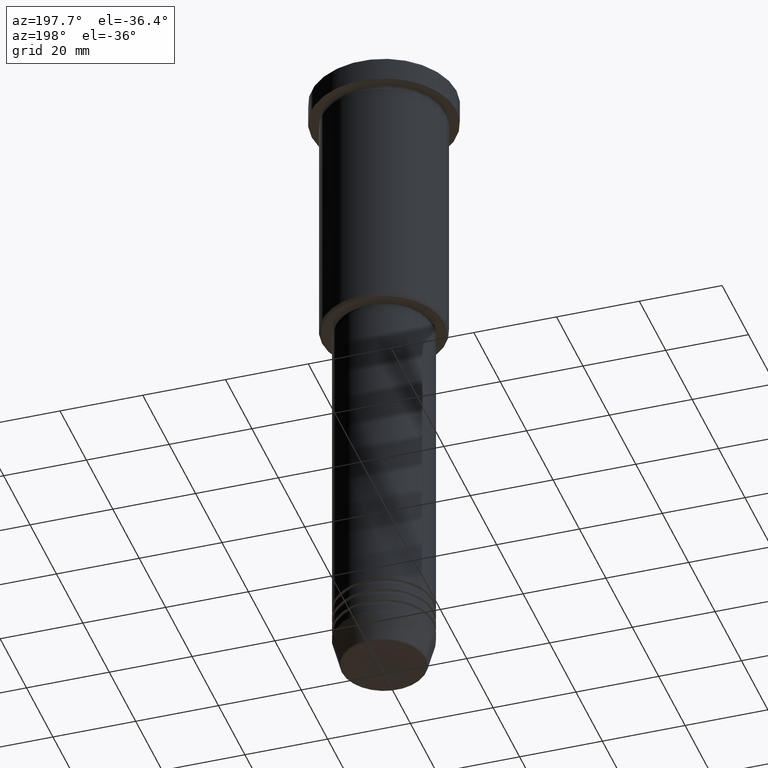
[diagram: clean part render]
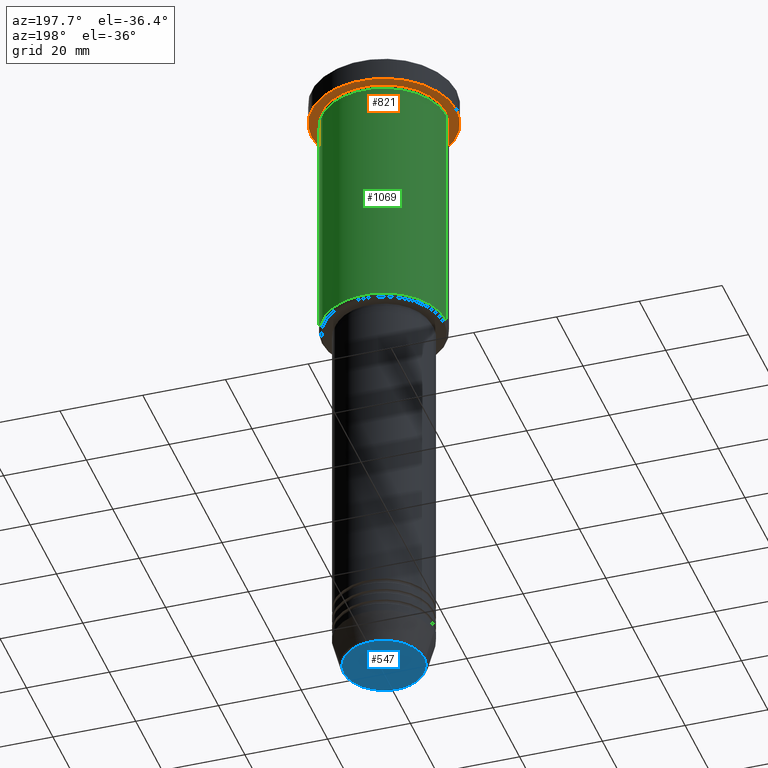
[diagram: same view with three faces highlighted in distinct colors, each labeled with its STEP entity id]
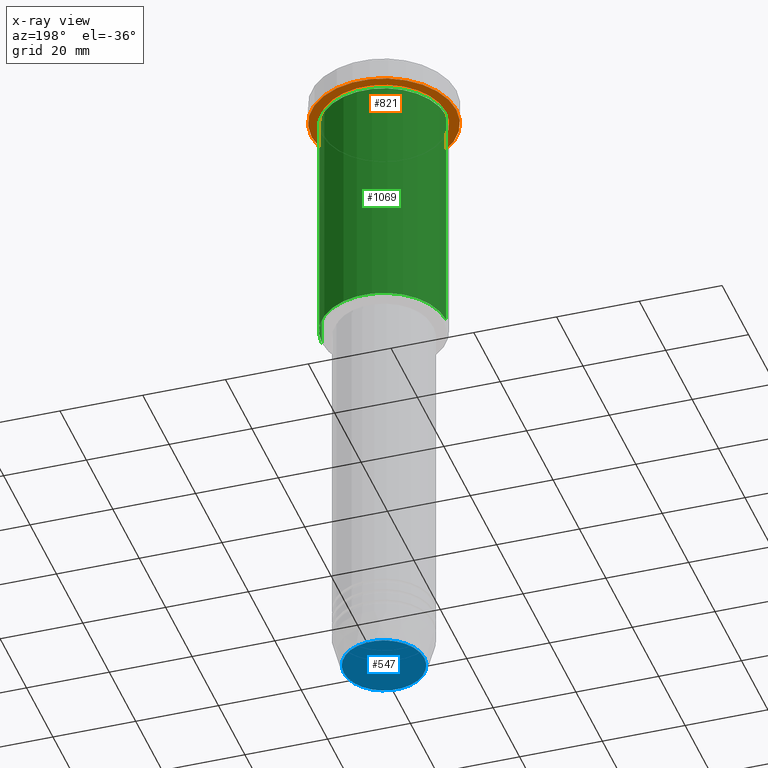
[diagram: x-ray of the same camera — body ghosted, the three highlighted faces saturated]
A machine part, auxiliary view with three faces highlighted in distinct colors.
The next image is the same camera in x-ray (body ghosted, the three faces saturated) — at least one of them is partly hidden behind the body in this view.
Their STEP definitions:

[orange] entity #821 — the highlighted planar face has unit normal (0, 0, -1).
#4 = CARTESIAN_POINT ( 'NONE',  ( 0.000000000000000000, 0.000000000000000000, -5.999999999999995559 ) ) ;
#54 = CARTESIAN_POINT ( 'NONE',  ( 0.000000000000000000, 0.000000000000000000, -5.999999999999995559 ) ) ;
#61 = FACE_OUTER_BOUND ( 'NONE', #1073, .T. ) ;
#62 = CIRCLE ( 'NONE', #1064, 17.50000000000000000 ) ;
#80 = AXIS2_PLACEMENT_3D ( 'NONE', #437, #239, #793 ) ;
#81 = CARTESIAN_POINT ( 'NONE',  ( 0.000000000000000000, 0.000000000000000000, -5.999999999999995559 ) ) ;
#92 = VERTEX_POINT ( 'NONE', #623 ) ;
#93 = DIRECTION ( 'NONE',  ( -1.000000000000000000, 0.000000000000000000, 0.000000000000000000 ) ) ;
#106 = EDGE_CURVE ( 'NONE', #92, #783, #922, .T. ) ;
#124 = ORIENTED_EDGE ( 'NONE', *, *, #881, .F. ) ;
#142 = CARTESIAN_POINT ( 'NONE',  ( -15.00000000000000000, 0.000000000000000000, -5.999999999999994671 ) ) ;
#151 = DIRECTION ( 'NONE',  ( -0.000000000000000000, -0.000000000000000000, 1.000000000000000000 ) ) ;
#227 = VERTEX_POINT ( 'NONE', #1129 ) ;
#239 = DIRECTION ( 'NONE',  ( 0.000000000000000000, 0.000000000000000000, -1.000000000000000000 ) ) ;
#317 = EDGE_LOOP ( 'NONE', ( #358, #936 ) ) ;
#358 = ORIENTED_EDGE ( 'NONE', *, *, #442, .T. ) ;
#371 = DIRECTION ( 'NONE',  ( -0.000000000000000000, -0.000000000000000000, 1.000000000000000000 ) ) ;
#407 = PLANE ( 'NONE',  #80 ) ;
#420 = FACE_BOUND ( 'NONE', #317, .T. ) ;
#437 = CARTESIAN_POINT ( 'NONE',  ( 0.000000000000000000, 17.50000000000000000, -5.999999999999995559 ) ) ;
#442 = EDGE_CURVE ( 'NONE', #783, #92, #1117, .T. ) ;
#459 = VERTEX_POINT ( 'NONE', #912 ) ;
#536 = DIRECTION ( 'NONE',  ( -0.000000000000000000, -0.000000000000000000, 1.000000000000000000 ) ) ;
#594 = AXIS2_PLACEMENT_3D ( 'NONE', #81, #621, #729 ) ;
#621 = DIRECTION ( 'NONE',  ( -0.000000000000000000, -0.000000000000000000, 1.000000000000000000 ) ) ;
#623 = CARTESIAN_POINT ( 'NONE',  ( 15.00000000000000000, 1.836970198721029589E-15, -5.999999999999994671 ) ) ;
#639 = DIRECTION ( 'NONE',  ( 1.000000000000000000, 0.000000000000000000, 0.000000000000000000 ) ) ;
#729 = DIRECTION ( 'NONE',  ( -1.000000000000000000, 0.000000000000000000, 0.000000000000000000 ) ) ;
#783 = VERTEX_POINT ( 'NONE', #142 ) ;
#793 = DIRECTION ( 'NONE',  ( -1.000000000000000000, 0.000000000000000000, -0.000000000000000000 ) ) ;
#816 = CIRCLE ( 'NONE', #943, 17.50000000000000000 ) ;
#821 = ADVANCED_FACE ( 'NONE', ( #420, #61 ), #407, .T. ) ;
#881 = EDGE_CURVE ( 'NONE', #459, #227, #816, .T. ) ;
#895 = EDGE_CURVE ( 'NONE', #227, #459, #62, .T. ) ;
#912 = CARTESIAN_POINT ( 'NONE',  ( -17.50000000000000000, 2.143131898507868248E-15, -5.999999999999995559 ) ) ;
#917 = CARTESIAN_POINT ( 'NONE',  ( 0.000000000000000000, 0.000000000000000000, -5.999999999999995559 ) ) ;
#922 = CIRCLE ( 'NONE', #1150, 15.00000000000000000 ) ;
#936 = ORIENTED_EDGE ( 'NONE', *, *, #106, .T. ) ;
#943 = AXIS2_PLACEMENT_3D ( 'NONE', #54, #151, #1153 ) ;
#1064 = AXIS2_PLACEMENT_3D ( 'NONE', #4, #371, #639 ) ;
#1073 = EDGE_LOOP ( 'NONE', ( #1130, #124 ) ) ;
#1117 = CIRCLE ( 'NONE', #594, 15.00000000000000000 ) ;
#1129 = CARTESIAN_POINT ( 'NONE',  ( 17.50000000000000000, 0.000000000000000000, -5.999999999999995559 ) ) ;
#1130 = ORIENTED_EDGE ( 'NONE', *, *, #895, .F. ) ;
#1150 = AXIS2_PLACEMENT_3D ( 'NONE', #917, #536, #93 ) ;
#1153 = DIRECTION ( 'NONE',  ( 1.000000000000000000, 0.000000000000000000, 0.000000000000000000 ) ) ;

[blue] entity #547 — the highlighted planar face has unit normal (0, -0, 1).
#20 = AXIS2_PLACEMENT_3D ( 'NONE', #375, #716, #1015 ) ;
#32 = ORIENTED_EDGE ( 'NONE', *, *, #483, .T. ) ;
#107 = DIRECTION ( 'NONE',  ( 1.000000000000000000, 0.000000000000000000, 0.000000000000000000 ) ) ;
#161 = EDGE_LOOP ( 'NONE', ( #32, #774 ) ) ;
#254 = AXIS2_PLACEMENT_3D ( 'NONE', #1034, #473, #107 ) ;
#274 = DIRECTION ( 'NONE',  ( 1.000000000000000000, 0.000000000000000000, 0.000000000000000000 ) ) ;
#352 = CIRCLE ( 'NONE', #20, 9.740692158992667160 ) ;
#375 = CARTESIAN_POINT ( 'NONE',  ( 0.000000000000000000, 0.000000000000000000, -160.9999999999999716 ) ) ;
#441 = CARTESIAN_POINT ( 'NONE',  ( 9.740692158992667160, 0.000000000000000000, -160.9999999999999716 ) ) ;
#473 = DIRECTION ( 'NONE',  ( 0.000000000000000000, 0.000000000000000000, -1.000000000000000000 ) ) ;
#483 = EDGE_CURVE ( 'NONE', #897, #1091, #352, .T. ) ;
#547 = ADVANCED_FACE ( 'NONE', ( #810 ), #742, .F. ) ;
#659 = EDGE_CURVE ( 'NONE', #1091, #897, #925, .T. ) ;
#716 = DIRECTION ( 'NONE',  ( 0.000000000000000000, 0.000000000000000000, -1.000000000000000000 ) ) ;
#738 = AXIS2_PLACEMENT_3D ( 'NONE', #1098, #1173, #274 ) ;
#742 = PLANE ( 'NONE',  #738 ) ;
#774 = ORIENTED_EDGE ( 'NONE', *, *, #659, .T. ) ;
#810 = FACE_OUTER_BOUND ( 'NONE', #161, .T. ) ;
#897 = VERTEX_POINT ( 'NONE', #441 ) ;
#925 = CIRCLE ( 'NONE', #254, 9.740692158992667160 ) ;
#1015 = DIRECTION ( 'NONE',  ( 1.000000000000000000, 0.000000000000000000, 0.000000000000000000 ) ) ;
#1034 = CARTESIAN_POINT ( 'NONE',  ( 0.000000000000000000, 0.000000000000000000, -160.9999999999999716 ) ) ;
#1091 = VERTEX_POINT ( 'NONE', #1181 ) ;
#1098 = CARTESIAN_POINT ( 'NONE',  ( 0.000000000000000000, 0.000000000000000000, -160.9999999999999716 ) ) ;
#1173 = DIRECTION ( 'NONE',  ( 0.000000000000000000, -0.000000000000000000, 1.000000000000000000 ) ) ;
#1181 = CARTESIAN_POINT ( 'NONE',  ( -9.740692158992667160, 1.222463696683475393E-15, -160.9999999999999716 ) ) ;

[green] entity #1069 — the highlighted cylindrical surface (partial cylindrical patch) has radius 15 mm, axis along (-0, -0, 1).
#2 = CARTESIAN_POINT ( 'NONE',  ( 15.00000000000000000, 0.000000000000000000, 0.000000000000000000 ) ) ;
#5 = DIRECTION ( 'NONE',  ( -0.000000000000000000, -0.000000000000000000, 1.000000000000000000 ) ) ;
#37 = ORIENTED_EDGE ( 'NONE', *, *, #478, .F. ) ;
#98 = CARTESIAN_POINT ( 'NONE',  ( 0.000000000000000000, 0.000000000000000000, -65.49999999999997158 ) ) ;
#112 = CARTESIAN_POINT ( 'NONE',  ( 0.000000000000000000, 0.000000000000000000, 0.000000000000000000 ) ) ;
#114 = CARTESIAN_POINT ( 'NONE',  ( 15.00000000000000000, 0.000000000000000000, -6.999999999999995559 ) ) ;
#138 = AXIS2_PLACEMENT_3D ( 'NONE', #98, #193, #487 ) ;
#146 = VERTEX_POINT ( 'NONE', #947 ) ;
#172 = DIRECTION ( 'NONE',  ( 1.000000000000000000, 0.000000000000000000, 0.000000000000000000 ) ) ;
#193 = DIRECTION ( 'NONE',  ( -0.000000000000000000, -0.000000000000000000, 1.000000000000000000 ) ) ;
#251 = VECTOR ( 'NONE', #5, 1000.000000000000000 ) ;
#282 = DIRECTION ( 'NONE',  ( -0.000000000000000000, -0.000000000000000000, 1.000000000000000000 ) ) ;
#309 = CIRCLE ( 'NONE', #138, 15.00000000000000000 ) ;
#314 = ORIENTED_EDGE ( 'NONE', *, *, #1097, .F. ) ;
#334 = VECTOR ( 'NONE', #750, 1000.000000000000000 ) ;
#335 = EDGE_LOOP ( 'NONE', ( #980, #704, #37, #314 ) ) ;
#457 = LINE ( 'NONE', #807, #251 ) ;
#476 = LINE ( 'NONE', #2, #334 ) ;
#477 = CARTESIAN_POINT ( 'NONE',  ( -15.00000000000000000, 1.836970198721029589E-15, -65.49999999999997158 ) ) ;
#478 = EDGE_CURVE ( 'NONE', #572, #714, #615, .T. ) ;
#487 = DIRECTION ( 'NONE',  ( -1.000000000000000000, 0.000000000000000000, 0.000000000000000000 ) ) ;
#511 = EDGE_CURVE ( 'NONE', #695, #714, #457, .T. ) ;
#548 = CYLINDRICAL_SURFACE ( 'NONE', #944, 15.00000000000000000 ) ;
#572 = VERTEX_POINT ( 'NONE', #114 ) ;
#591 = EDGE_CURVE ( 'NONE', #146, #695, #309, .T. ) ;
#615 = CIRCLE ( 'NONE', #904, 15.00000000000000000 ) ;
#695 = VERTEX_POINT ( 'NONE', #477 ) ;
#704 = ORIENTED_EDGE ( 'NONE', *, *, #511, .T. ) ;
#714 = VERTEX_POINT ( 'NONE', #1110 ) ;
#750 = DIRECTION ( 'NONE',  ( -0.000000000000000000, -0.000000000000000000, 1.000000000000000000 ) ) ;
#807 = CARTESIAN_POINT ( 'NONE',  ( -15.00000000000000000, 1.836970198721029589E-15, 0.000000000000000000 ) ) ;
#827 = DIRECTION ( 'NONE',  ( -0.000000000000000000, -0.000000000000000000, 1.000000000000000000 ) ) ;
#904 = AXIS2_PLACEMENT_3D ( 'NONE', #1107, #282, #172 ) ;
#931 = FACE_OUTER_BOUND ( 'NONE', #335, .T. ) ;
#944 = AXIS2_PLACEMENT_3D ( 'NONE', #112, #827, #1118 ) ;
#947 = CARTESIAN_POINT ( 'NONE',  ( 15.00000000000000000, 0.000000000000000000, -65.49999999999997158 ) ) ;
#980 = ORIENTED_EDGE ( 'NONE', *, *, #591, .T. ) ;
#1069 = ADVANCED_FACE ( 'NONE', ( #931 ), #548, .T. ) ;
#1097 = EDGE_CURVE ( 'NONE', #146, #572, #476, .T. ) ;
#1107 = CARTESIAN_POINT ( 'NONE',  ( 0.000000000000000000, 0.000000000000000000, -6.999999999999995559 ) ) ;
#1110 = CARTESIAN_POINT ( 'NONE',  ( -15.00000000000000000, 1.836970198721029589E-15, -6.999999999999995559 ) ) ;
#1118 = DIRECTION ( 'NONE',  ( 1.000000000000000000, 0.000000000000000000, 0.000000000000000000 ) ) ;